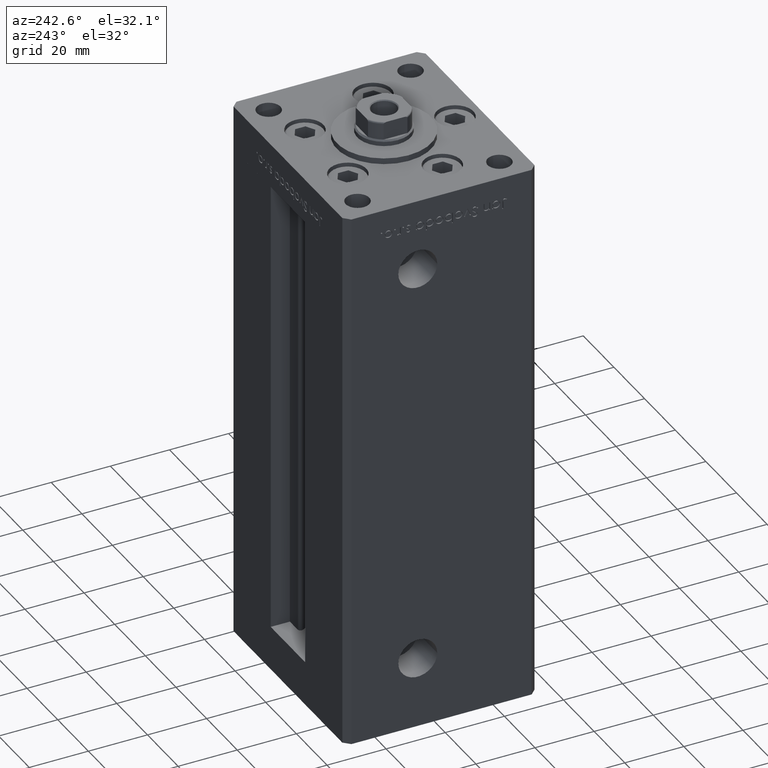
[diagram: clean part render]
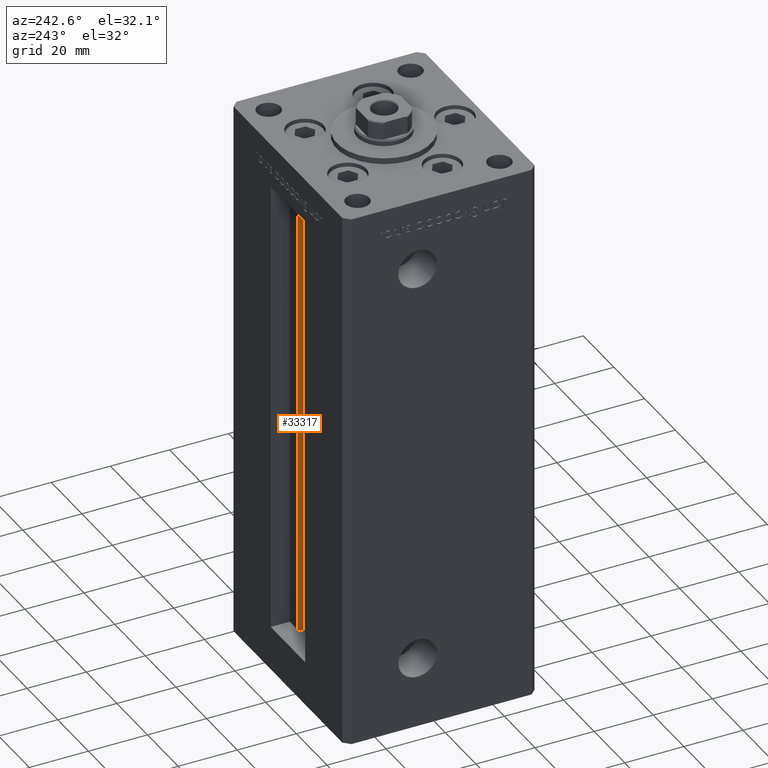
[diagram: same view with one face highlighted and labeled with its STEP entity id]
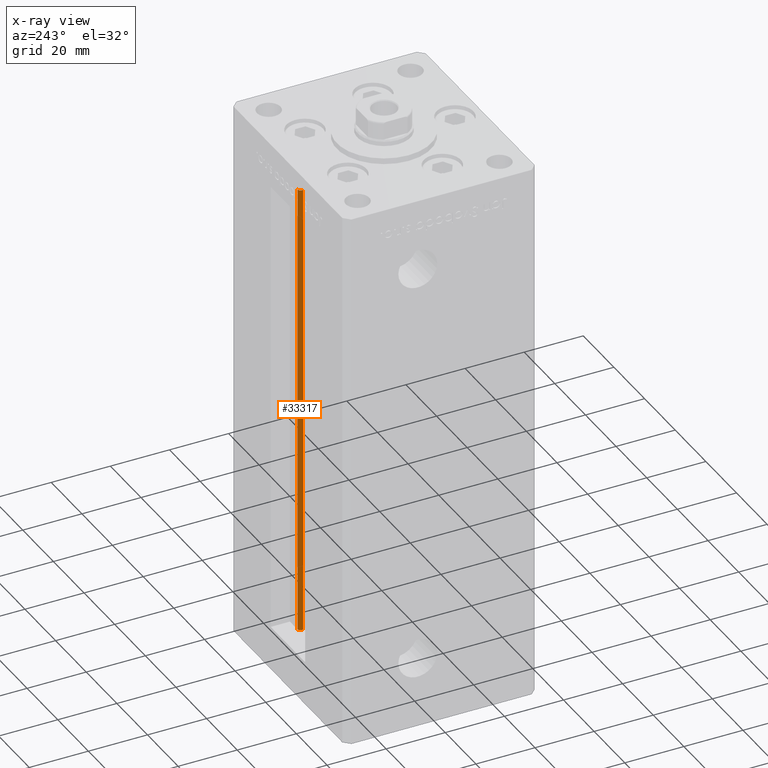
[diagram: x-ray of the same camera — body ghosted, the highlighted face saturated]
A machine part, auxiliary view. The second image highlights one B-rep face of the part: STEP entity #33317.
The next image is the same camera in x-ray: the body ghosted, the highlighted face saturated — about 0% of this face is hidden behind the body in this view.
In plain terms, the highlighted cylindrical surface (edge-blend (fillet) strip) has radius 0.9333 mm, axis along (0, 0, 1).
Its self-contained STEP definition (entity closure, byte-faithful):
#898 = VERTEX_POINT ( 'NONE', #27385 ) ;
#2421 = EDGE_CURVE ( 'NONE', #898, #46137, #9807, .T. ) ;
#3849 = LINE ( 'NONE', #11502, #16766 ) ;
#4527 = CYLINDRICAL_SURFACE ( 'NONE', #17089, 0.9333333333340008142 ) ;
#4713 = VERTEX_POINT ( 'NONE', #14664 ) ;
#6580 = EDGE_CURVE ( 'NONE', #4713, #898, #21277, .T. ) ;
#6677 = ORIENTED_EDGE ( 'NONE', *, *, #7533, .F. ) ;
#7459 = CARTESIAN_POINT ( 'NONE',  ( 6.183333333334001480, 25.06666666666599141, 156.0000000000000000 ) ) ;
#7533 = EDGE_CURVE ( 'NONE', #4713, #30376, #27587, .T. ) ;
#9188 = ORIENTED_EDGE ( 'NONE', *, *, #17362, .F. ) ;
#9807 = CIRCLE ( 'NONE', #39313, 0.9333333333340008142 ) ;
#11502 = CARTESIAN_POINT ( 'NONE',  ( 6.183333333334001480, 25.99999999999999289, 0.000000000000000000 ) ) ;
#14664 = CARTESIAN_POINT ( 'NONE',  ( 5.375042956467947164, 24.59999999999899245, 0.000000000000000000 ) ) ;
#16400 = CARTESIAN_POINT ( 'NONE',  ( 6.183333333334001480, 25.06666666666599141, 0.000000000000000000 ) ) ;
#16766 = VECTOR ( 'NONE', #27593, 1000.000000000000000 ) ;
#17089 = AXIS2_PLACEMENT_3D ( 'NONE', #16400, #32490, #32749 ) ;
#17326 = DIRECTION ( 'NONE',  ( -0.000000000000000000, -0.000000000000000000, 1.000000000000000000 ) ) ;
#17362 = EDGE_CURVE ( 'NONE', #30376, #46137, #3849, .T. ) ;
#21277 = LINE ( 'NONE', #37399, #39357 ) ;
#23546 = DIRECTION ( 'NONE',  ( 0.000000000000000000, 0.000000000000000000, -1.000000000000000000 ) ) ;
#24218 = AXIS2_PLACEMENT_3D ( 'NONE', #45992, #38083, #42548 ) ;
#27385 = CARTESIAN_POINT ( 'NONE',  ( 5.375042956467948052, 24.59999999999899245, 156.0000000000000000 ) ) ;
#27587 = CIRCLE ( 'NONE', #24218, 0.9333333333340008142 ) ;
#27593 = DIRECTION ( 'NONE',  ( -0.000000000000000000, -0.000000000000000000, 1.000000000000000000 ) ) ;
#28013 = FACE_OUTER_BOUND ( 'NONE', #30943, .T. ) ;
#28716 = CARTESIAN_POINT ( 'NONE',  ( 6.183333333334001480, 25.99999999999999289, 156.0000000000000000 ) ) ;
#30376 = VERTEX_POINT ( 'NONE', #31200 ) ;
#30943 = EDGE_LOOP ( 'NONE', ( #9188, #6677, #43703, #44822 ) ) ;
#31200 = CARTESIAN_POINT ( 'NONE',  ( 6.183333333334001480, 25.99999999999999289, 0.000000000000000000 ) ) ;
#32490 = DIRECTION ( 'NONE',  ( -0.000000000000000000, -0.000000000000000000, 1.000000000000000000 ) ) ;
#32749 = DIRECTION ( 'NONE',  ( 1.000000000000000000, 0.000000000000000000, 0.000000000000000000 ) ) ;
#33317 = ADVANCED_FACE ( 'NONE', ( #28013 ), #4527, .T. ) ;
#37399 = CARTESIAN_POINT ( 'NONE',  ( 5.375042956467947164, 24.59999999999899245, 0.000000000000000000 ) ) ;
#38083 = DIRECTION ( 'NONE',  ( -0.000000000000000000, -0.000000000000000000, -1.000000000000000000 ) ) ;
#39313 = AXIS2_PLACEMENT_3D ( 'NONE', #7459, #23546, #39666 ) ;
#39357 = VECTOR ( 'NONE', #17326, 1000.000000000000000 ) ;
#39666 = DIRECTION ( 'NONE',  ( 1.000000000000000000, 0.000000000000000000, 0.000000000000000000 ) ) ;
#42548 = DIRECTION ( 'NONE',  ( 1.000000000000000000, 0.000000000000000000, 0.000000000000000000 ) ) ;
#43703 = ORIENTED_EDGE ( 'NONE', *, *, #6580, .T. ) ;
#44822 = ORIENTED_EDGE ( 'NONE', *, *, #2421, .T. ) ;
#45992 = CARTESIAN_POINT ( 'NONE',  ( 6.183333333334001480, 25.06666666666599141, 0.000000000000000000 ) ) ;
#46137 = VERTEX_POINT ( 'NONE', #28716 ) ;